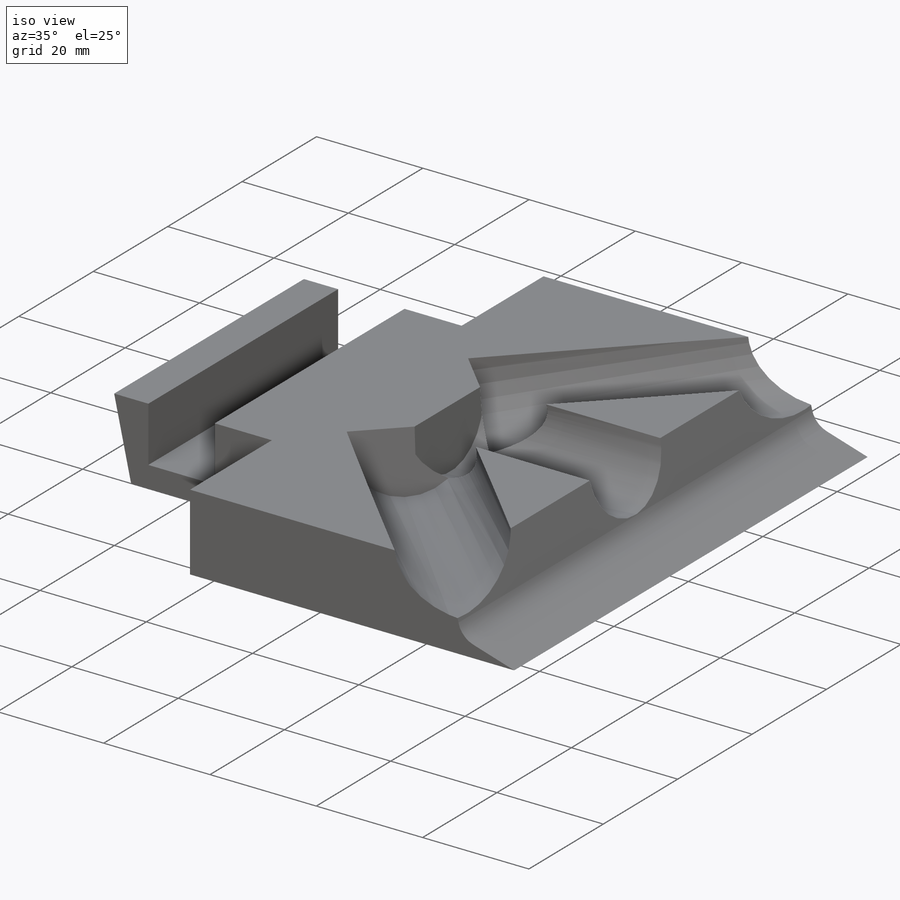
[diagram: iso view]
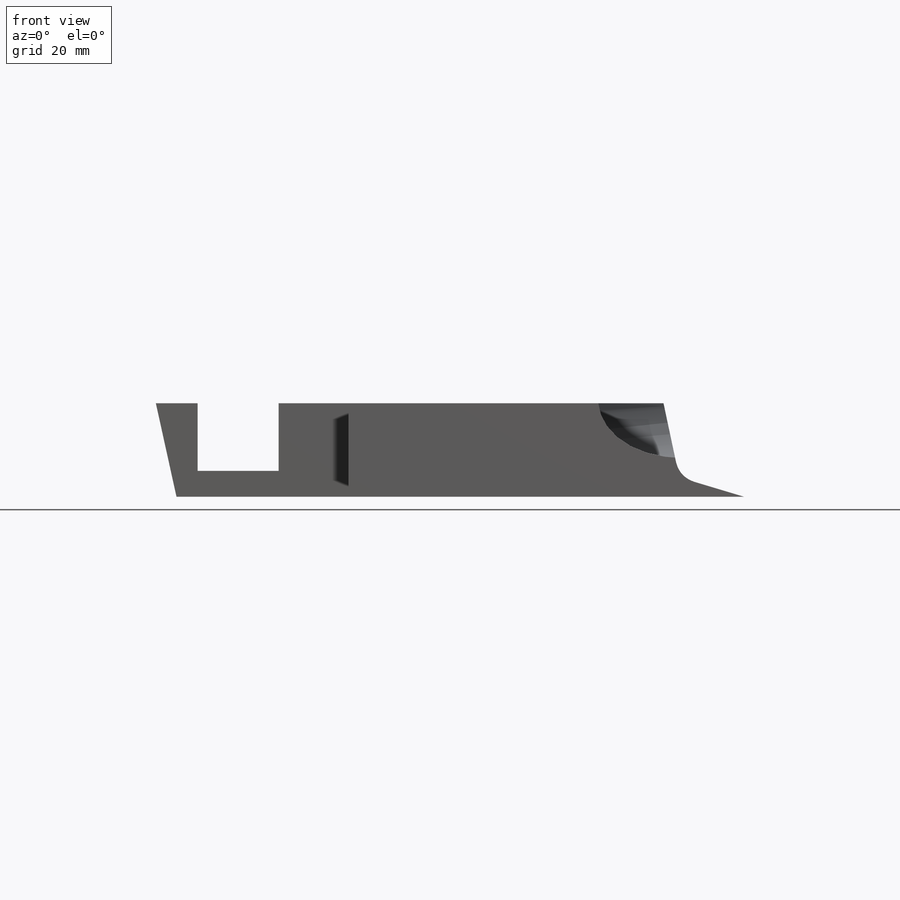
[diagram: front view]
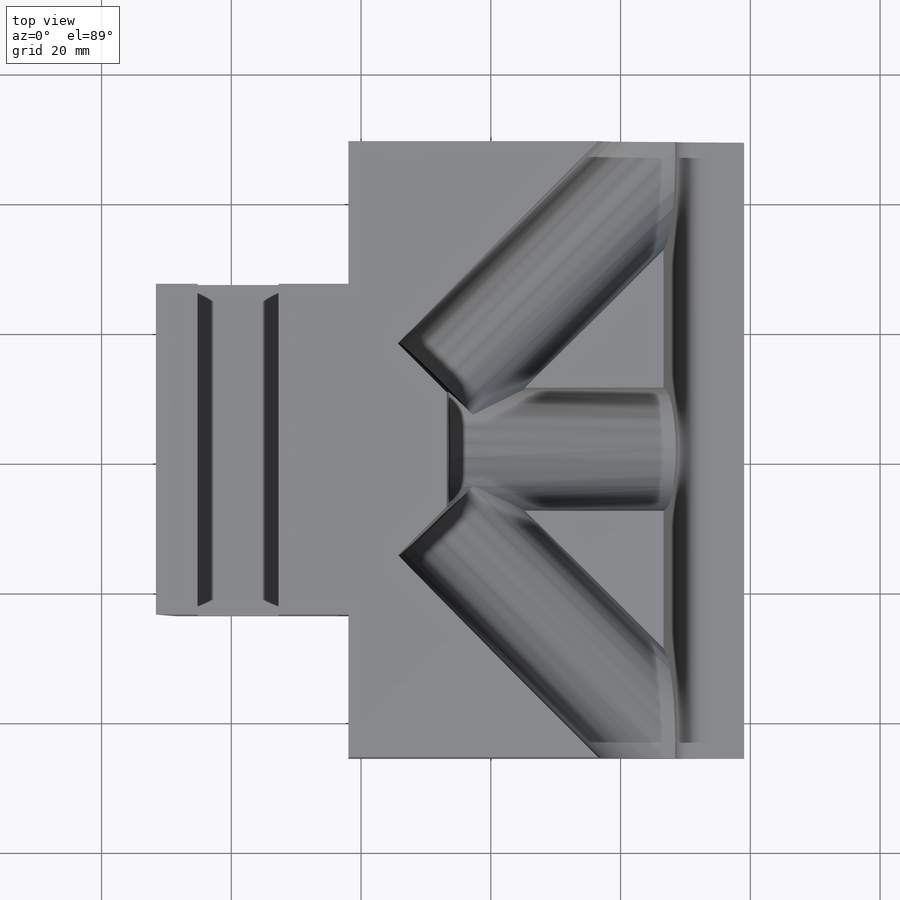
[diagram: top view]
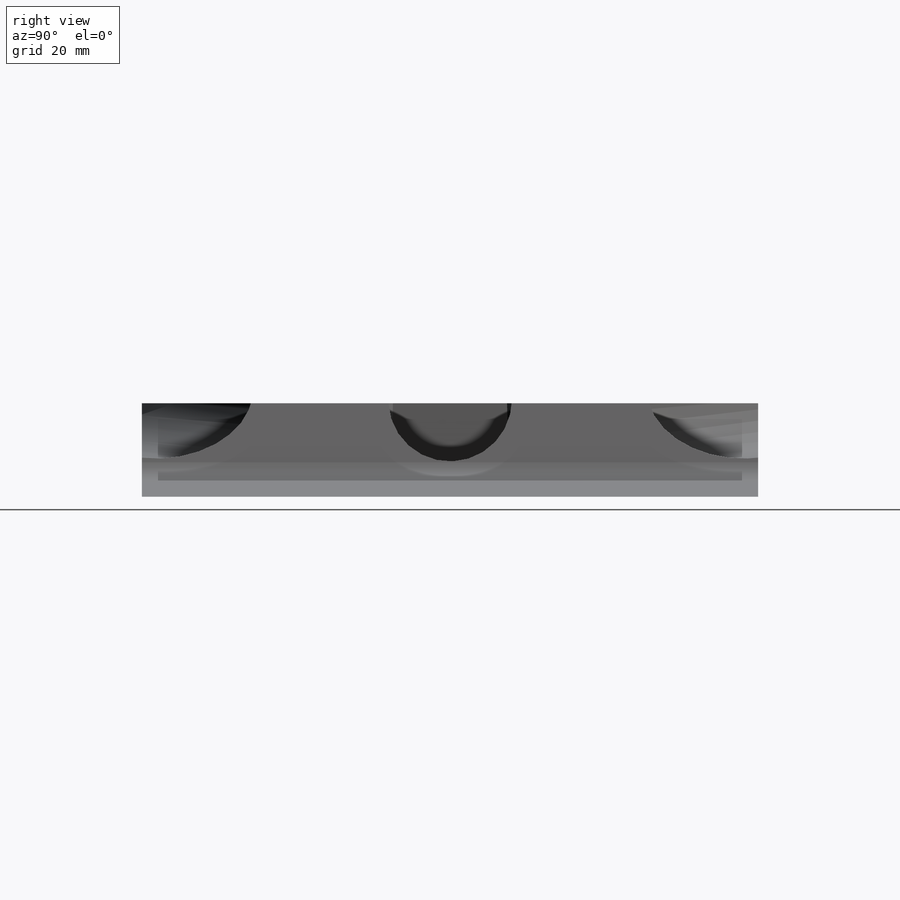
[diagram: right view]
SOLIDWORKS PART (.sldprt)
format: sldprt  version: not decoded by parser v0  size: 390,144 bytes
history: native  units: mm
features: sketch x19, cut_extrude x17, extrude x2, material x1, fillet x1 (+12 scaffold rows collapsed)
feature tree (52):
  scaffold x12  (default folders/planes/origin — collapsed)
  material  "Material <not specified>"
  sketch  "Sketch1"  dims[D1=95.0mm D2=95.0mm]
  extrude  "Boss-Extrude1"  Depth=50mm
  sketch  "Sketch2"  dims[D1=2.7mm]
  cut_extrude  "Cut-Extrude1"  Depth=100mm
  sketch  "Sketch3"  dims[D3=19.0mm D1=47.5mm D2=15.5mm]
  cut_extrude  "Cut-Extrude2"  Depth=45mm
  sketch  "Sketch5"  dims[D1=20.0mm D2=20.0mm D3=20.0mm D4=20.0mm]
  cut_extrude  "Cut-Extrude4"  Depth=45mm
  sketch  "Sketch6"
  cut_extrude  "Cut-Extrude5"  Depth=45mm
  sketch  "Sketch7"  dims[D1=2.7mm]
  cut_extrude  "Cut-Extrude6"  Depth=45mm
  sketch  "Sketch8"  dims[D1=2.7mm]
  cut_extrude  "Cut-Extrude7"  Depth=45mm
  sketch  "Sketch9"  dims[c1.D1=10.0mm c1.D2=~13.838482mm c2.D1=~21.268447mm c2.D2=20.0mm c3.D1=15.5mm]
  cut_extrude  "Cut-Extrude9"  Depth=45mm
  sketch  "Sketch11"  dims[D1=20.0mm D2=15.5mm]
  cut_extrude  "Cut-Extrude10"  Depth=45mm
  sketch  "Sketch12"
  extrude  "Boss-Extrude2"  Depth=45mm
  sketch  "Sketch13"  dims[D1=10.0mm D2=3.0mm D3=10.0mm]
  cut_extrude  "Cut-Extrude11"  Depth=100mm
  sketch  "Sketch14"
  cut_extrude  "Cut-Extrude12"  Depth=100mm
  sketch  "Sketch15"
  cut_extrude  "Cut-Extrude13"  Depth=100mm
  sketch  "Sketch16"
  cut_extrude  "Cut-Extrude14"  Depth=100mm
  fillet  "Fillet2"  Radius=4mm
  sketch  "Sketch17"  dims[D1=34.0mm D2=34.0mm]
  cut_extrude  "Cut-Extrude16"  Depth=22mm
  sketch  "Sketch19"  dims[D1=34.0mm D2=34.0mm]
  cut_extrude  "Cut-Extrude17"  Depth=22mm
  sketch  "Sketch20"  dims[D1=12.5mm D2=16.5mm D3=4.0mm D4=10.75mm D5=10.75mm]
  cut_extrude  "Cut-Extrude18"  Depth=60mm
  sketch  "Sketch21"  dims[D1=7.5mm]
  cut_extrude  "Cut-Extrude19"  Depth=60mm
  sketch  "Sketch22"
  cut_extrude  "Cut-Extrude20"  Depth=100mm
decode coverage: 33 of 39 modeling features carry decoded parameters
note: ~ marks probable driven/reference dimensions
note: suppression state not decoded; provenance and decode notes live in map.json
